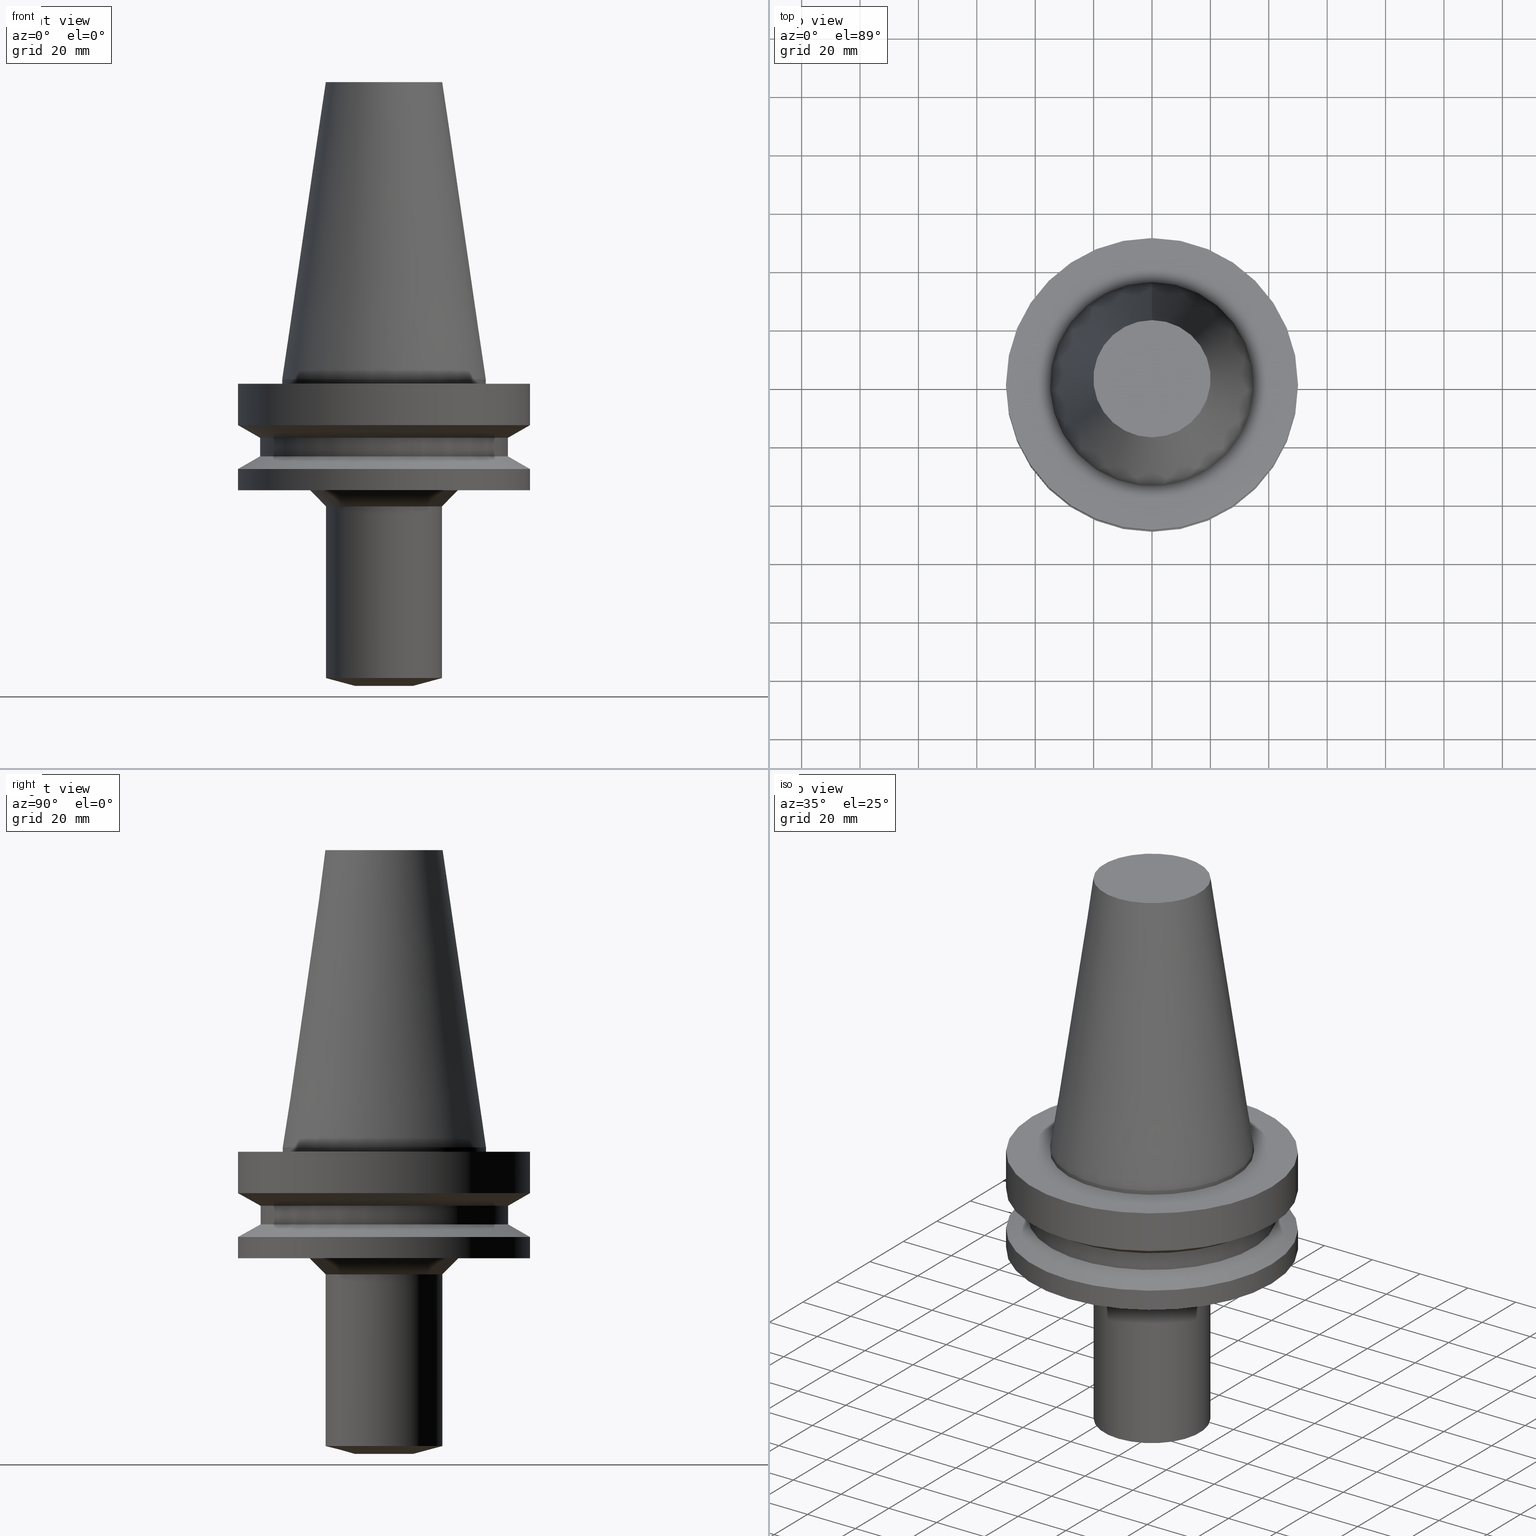
[diagram: canonical four-view strip — front | top / right | iso, engineering-drawing reading convention]
A machine part, canonical four-view strip (front | top / right | iso — engineering-drawing reading convention). The complete STEP part file that produces these views, byte-faithful:
ISO-10303-21;
HEADER;
FILE_DESCRIPTION((''),'1');
FILE_NAME('T:/21_DXF\X2\30C730FC30BF4F5C621057FA6E96\X0\/BBT50M-BSL16-105.stp','2017-05-09T05:43:40',(''),(''),'Spatial Interop R21 SP3','Kubotek KeyCreator 2011 V10.0.2 (22737)',' ');
FILE_SCHEMA(('automotive_design'));
ENDSEC;
DATA;
#1=MECHANICAL_DESIGN_GEOMETRIC_PRESENTATION_REPRESENTATION(' ',(#10,#11,#12,#13,#14,#15,#16,#17,#18,#19,#20,#21,#22,#23,#24,#25,#26,#27,#28,#29,#30,#31,#32,#33,#34,#35,#36,#37),#6);
#2=PRODUCT_DEFINITION_CONTEXT('',#38,'design');
#3=APPLICATION_PROTOCOL_DEFINITION('INTERNATIONAL STANDARD','automotive_design',1994,#38);
#4=PRODUCT_CATEGORY_RELATIONSHIP('NONE','NONE',#39,#40);
#5=SHAPE_DEFINITION_REPRESENTATION(#41,#42);
#6= (GEOMETRIC_REPRESENTATION_CONTEXT(3)GLOBAL_UNCERTAINTY_ASSIGNED_CONTEXT((#45))GLOBAL_UNIT_ASSIGNED_CONTEXT((#47,#48,#49))REPRESENTATION_CONTEXT('NONE','WORKSPACE'));
#10=STYLED_ITEM('',(#51,#52),#53);
#11=STYLED_ITEM('',(#54),#55);
#12=STYLED_ITEM('',(#56,#57),#58);
#13=STYLED_ITEM('',(#59,#60),#61);
#14=STYLED_ITEM('',(#62),#63);
#15=STYLED_ITEM('',(#64),#65);
#16=STYLED_ITEM('',(#66,#67),#68);
#17=STYLED_ITEM('',(#69),#70);
#18=STYLED_ITEM('',(#71),#72);
#19=STYLED_ITEM('',(#73,#74),#75);
#20=STYLED_ITEM('',(#76,#77),#78);
#21=STYLED_ITEM('',(#79,#80),#81);
#22=STYLED_ITEM('',(#82),#83);
#23=STYLED_ITEM('',(#84),#85);
#24=STYLED_ITEM('',(#86,#87),#88);
#25=STYLED_ITEM('',(#89,#90),#91);
#26=STYLED_ITEM('',(#92,#93),#94);
#27=STYLED_ITEM('',(#95,#96),#97);
#28=STYLED_ITEM('',(#98),#99);
#29=STYLED_ITEM('',(#100),#101);
#30=STYLED_ITEM('',(#102,#103),#104);
#31=STYLED_ITEM('',(#105),#106);
#32=STYLED_ITEM('',(#107,#108),#109);
#33=STYLED_ITEM('',(#110),#111);
#34=STYLED_ITEM('',(#112,#113),#114);
#35=STYLED_ITEM('',(#115,#116),#117);
#36=STYLED_ITEM('',(#118),#119);
#37=STYLED_ITEM('',(#120),#121);
#38=APPLICATION_CONTEXT(' ');
#39=PRODUCT_CATEGORY('part','NONE');
#40=PRODUCT_RELATED_PRODUCT_CATEGORY('detail',' ',(#122));
#41=PRODUCT_DEFINITION_SHAPE('NONE','NONE',#123);
#42=ADVANCED_BREP_SHAPE_REPRESENTATION('Unnamed[1]',(#58,#124),#6);
#45=UNCERTAINTY_MEASURE_WITH_UNIT(LENGTH_MEASURE(1.0E-006),#47,'','');
#47= (CONVERSION_BASED_UNIT('MILLIMETRE',#127)LENGTH_UNIT()NAMED_UNIT(#130));
#48= (NAMED_UNIT(#132)PLANE_ANGLE_UNIT()SI_UNIT($,.RADIAN.));
#49= (NAMED_UNIT(#132)SOLID_ANGLE_UNIT()SI_UNIT($,.STERADIAN.));
#51=PRESENTATION_STYLE_ASSIGNMENT((#138));
#52=PRESENTATION_STYLE_ASSIGNMENT((#139));
#53=ADVANCED_FACE('Unnamed[1]',(#140,#141),#142,.T.);
#54=PRESENTATION_STYLE_ASSIGNMENT((#143));
#55=EDGE_CURVE('Unnamed[1]',#144,#144,#145,.T.);
#56=PRESENTATION_STYLE_ASSIGNMENT((#146));
#57=PRESENTATION_STYLE_ASSIGNMENT((#147));
#58=MANIFOLD_SOLID_BREP('Unnamed[1]',#148);
#59=PRESENTATION_STYLE_ASSIGNMENT((#149));
#60=PRESENTATION_STYLE_ASSIGNMENT((#150));
#61=ADVANCED_FACE('Unnamed[1]',(#151,#152),#153,.T.);
#62=PRESENTATION_STYLE_ASSIGNMENT((#154));
#63=EDGE_CURVE('Unnamed[1]',#155,#155,#156,.T.);
#64=PRESENTATION_STYLE_ASSIGNMENT((#157));
#65=EDGE_CURVE('Unnamed[1]',#158,#158,#159,.T.);
#66=PRESENTATION_STYLE_ASSIGNMENT((#160));
#67=PRESENTATION_STYLE_ASSIGNMENT((#161));
#68=ADVANCED_FACE('Unnamed[1]',(#162,#163),#164,.T.);
#69=PRESENTATION_STYLE_ASSIGNMENT((#165));
#70=EDGE_CURVE('Unnamed[1]',#166,#166,#167,.T.);
#71=PRESENTATION_STYLE_ASSIGNMENT((#168));
#72=EDGE_CURVE('Unnamed[1]',#169,#169,#170,.T.);
#73=PRESENTATION_STYLE_ASSIGNMENT((#171));
#74=PRESENTATION_STYLE_ASSIGNMENT((#172));
#75=ADVANCED_FACE('Unnamed[1]',(#173,#174),#175,.T.);
#76=PRESENTATION_STYLE_ASSIGNMENT((#176));
#77=PRESENTATION_STYLE_ASSIGNMENT((#177));
#78=ADVANCED_FACE('Unnamed[1]',(#178,#179),#180,.T.);
#79=PRESENTATION_STYLE_ASSIGNMENT((#181));
#80=PRESENTATION_STYLE_ASSIGNMENT((#182));
#81=ADVANCED_FACE('Unnamed[1]',(#183,#184),#185,.T.);
#82=PRESENTATION_STYLE_ASSIGNMENT((#186));
#83=EDGE_CURVE('Unnamed[1]',#187,#187,#188,.T.);
#84=PRESENTATION_STYLE_ASSIGNMENT((#189));
#85=EDGE_CURVE('Unnamed[1]',#190,#190,#191,.T.);
#86=PRESENTATION_STYLE_ASSIGNMENT((#192));
#87=PRESENTATION_STYLE_ASSIGNMENT((#193));
#88=ADVANCED_FACE('Unnamed[1]',(#194,#195),#196,.T.);
#89=PRESENTATION_STYLE_ASSIGNMENT((#197));
#90=PRESENTATION_STYLE_ASSIGNMENT((#198));
#91=ADVANCED_FACE('Unnamed[1]',(#199),#200,.T.);
#92=PRESENTATION_STYLE_ASSIGNMENT((#201));
#93=PRESENTATION_STYLE_ASSIGNMENT((#202));
#94=ADVANCED_FACE('Unnamed[1]',(#203,#204),#205,.T.);
#95=PRESENTATION_STYLE_ASSIGNMENT((#206));
#96=PRESENTATION_STYLE_ASSIGNMENT((#207));
#97=ADVANCED_FACE('Unnamed[1]',(#208),#209,.T.);
#98=PRESENTATION_STYLE_ASSIGNMENT((#210));
#99=EDGE_CURVE('Unnamed[1]',#211,#211,#212,.T.);
#100=PRESENTATION_STYLE_ASSIGNMENT((#213));
#101=EDGE_CURVE('Unnamed[1]',#214,#214,#215,.T.);
#102=PRESENTATION_STYLE_ASSIGNMENT((#216));
#103=PRESENTATION_STYLE_ASSIGNMENT((#217));
#104=ADVANCED_FACE('Unnamed[1]',(#218,#219),#220,.T.);
#105=PRESENTATION_STYLE_ASSIGNMENT((#221));
#106=EDGE_CURVE('Unnamed[1]',#222,#222,#223,.T.);
#107=PRESENTATION_STYLE_ASSIGNMENT((#224));
#108=PRESENTATION_STYLE_ASSIGNMENT((#225));
#109=ADVANCED_FACE('Unnamed[1]',(#226,#227),#228,.T.);
#110=PRESENTATION_STYLE_ASSIGNMENT((#229));
#111=EDGE_CURVE('Unnamed[1]',#230,#230,#231,.T.);
#112=PRESENTATION_STYLE_ASSIGNMENT((#232));
#113=PRESENTATION_STYLE_ASSIGNMENT((#233));
#114=ADVANCED_FACE('Unnamed[1]',(#234,#235),#236,.T.);
#115=PRESENTATION_STYLE_ASSIGNMENT((#237));
#116=PRESENTATION_STYLE_ASSIGNMENT((#238));
#117=ADVANCED_FACE('Unnamed[1]',(#239,#240),#241,.T.);
#118=PRESENTATION_STYLE_ASSIGNMENT((#242));
#119=EDGE_CURVE('Unnamed[1]',#243,#243,#244,.T.);
#120=PRESENTATION_STYLE_ASSIGNMENT((#245));
#121=EDGE_CURVE('Unnamed[1]',#246,#246,#247,.T.);
#122=PRODUCT('Unnamed[1]','Unnamed[1]','PART-Unnamed[1]-DESC',(#248));
#123=PRODUCT_DEFINITION('NONE','NONE',#249,#2);
#124=AXIS2_PLACEMENT_3D('',#250,#251,#252);
#127=LENGTH_MEASURE_WITH_UNIT(LENGTH_MEASURE(1.0),#253);
#130=DIMENSIONAL_EXPONENTS(1.0,0.0,0.0,0.0,0.0,0.0,0.0);
#132=DIMENSIONAL_EXPONENTS(0.0,0.0,0.0,0.0,0.0,0.0,0.0);
#138=SURFACE_STYLE_USAGE(.BOTH.,#254);
#139=CURVE_STYLE('',#255,POSITIVE_LENGTH_MEASURE(1000.0),#256);
#140=FACE_BOUND('',#257,.T.);
#141=FACE_BOUND('',#258,.T.);
#142=CONICAL_SURFACE('',#259,27.5020833325942,0.144812498253158);
#143=CURVE_STYLE('',#260,POSITIVE_LENGTH_MEASURE(1000.0),#261);
#144=VERTEX_POINT('',#262);
#145=CIRCLE('',#263,50.0);
#146=SURFACE_STYLE_USAGE(.BOTH.,#264);
#147=CURVE_STYLE('',#265,POSITIVE_LENGTH_MEASURE(1000.0),#266);
#148=CLOSED_SHELL('',(#91,#53,#68,#104,#117,#114,#61,#75,#88,#78,#81,#94,#109,#97));
#149=SURFACE_STYLE_USAGE(.BOTH.,#267);
#150=CURVE_STYLE('',#268,POSITIVE_LENGTH_MEASURE(1000.0),#269);
#151=FACE_BOUND('',#270,.T.);
#152=FACE_BOUND('',#271,.T.);
#153=CYLINDRICAL_SURFACE('',#272,42.5);
#154=CURVE_STYLE('',#273,POSITIVE_LENGTH_MEASURE(1000.0),#274);
#155=VERTEX_POINT('',#275);
#156=CIRCLE('',#276,20.0000000000053);
#157=CURVE_STYLE('',#277,POSITIVE_LENGTH_MEASURE(1000.0),#278);
#158=VERTEX_POINT('',#279);
#159=CIRCLE('',#280,50.0);
#160=SURFACE_STYLE_USAGE(.BOTH.,#281);
#161=CURVE_STYLE('',#282,POSITIVE_LENGTH_MEASURE(1000.0),#283);
#162=FACE_BOUND('',#284,.T.);
#163=FACE_BOUND('',#285,.T.);
#164=CYLINDRICAL_SURFACE('',#286,34.925);
#165=CURVE_STYLE('',#287,POSITIVE_LENGTH_MEASURE(1000.0),#288);
#166=VERTEX_POINT('',#289);
#167=CIRCLE('',#290,34.925);
#168=CURVE_STYLE('',#291,POSITIVE_LENGTH_MEASURE(1000.0),#292);
#169=VERTEX_POINT('',#293);
#170=CIRCLE('',#294,34.925);
#171=SURFACE_STYLE_USAGE(.BOTH.,#295);
#172=CURVE_STYLE('',#296,POSITIVE_LENGTH_MEASURE(1000.0),#297);
#173=FACE_BOUND('',#298,.T.);
#174=FACE_BOUND('',#299,.T.);
#175=CONICAL_SURFACE('',#300,46.25,1.04719755108881);
#176=SURFACE_STYLE_USAGE(.BOTH.,#301);
#177=CURVE_STYLE('',#302,POSITIVE_LENGTH_MEASURE(1000.0),#303);
#178=FACE_BOUND('',#304,.T.);
#179=FACE_OUTER_BOUND('',#305,.T.);
#180=PLANE('',#306);
#181=SURFACE_STYLE_USAGE(.BOTH.,#307);
#182=CURVE_STYLE('',#308,POSITIVE_LENGTH_MEASURE(1000.0),#309);
#183=FACE_BOUND('',#310,.T.);
#184=FACE_BOUND('',#311,.T.);
#185=CONICAL_SURFACE('',#312,22.749999999996,0.785398163397359);
#186=CURVE_STYLE('',#313,POSITIVE_LENGTH_MEASURE(1000.0),#314);
#187=VERTEX_POINT('',#315);
#188=CIRCLE('',#316,50.0);
#189=CURVE_STYLE('',#317,POSITIVE_LENGTH_MEASURE(1000.0),#318);
#190=VERTEX_POINT('',#319);
#191=CIRCLE('',#320,42.5);
#192=SURFACE_STYLE_USAGE(.BOTH.,#321);
#193=CURVE_STYLE('',#322,POSITIVE_LENGTH_MEASURE(1000.0),#323);
#194=FACE_BOUND('',#324,.T.);
#195=FACE_BOUND('',#325,.T.);
#196=CYLINDRICAL_SURFACE('',#326,50.0);
#197=SURFACE_STYLE_USAGE(.BOTH.,#327);
#198=CURVE_STYLE('',#328,POSITIVE_LENGTH_MEASURE(1000.0),#329);
#199=FACE_OUTER_BOUND('',#330,.T.);
#200=PLANE('',#331);
#201=SURFACE_STYLE_USAGE(.BOTH.,#332);
#202=CURVE_STYLE('',#333,POSITIVE_LENGTH_MEASURE(1000.0),#334);
#203=FACE_BOUND('',#335,.T.);
#204=FACE_BOUND('',#336,.T.);
#205=CYLINDRICAL_SURFACE('',#337,20.0000000000034);
#206=SURFACE_STYLE_USAGE(.BOTH.,#338);
#207=CURVE_STYLE('',#339,POSITIVE_LENGTH_MEASURE(1000.0),#340);
#208=FACE_OUTER_BOUND('',#341,.T.);
#209=PLANE('',#342);
#210=CURVE_STYLE('',#343,POSITIVE_LENGTH_MEASURE(1000.0),#344);
#211=VERTEX_POINT('',#345);
#212=CIRCLE('',#346,42.5);
#213=CURVE_STYLE('',#347,POSITIVE_LENGTH_MEASURE(1000.0),#348);
#214=VERTEX_POINT('',#349);
#215=CIRCLE('',#350,50.0);
#216=SURFACE_STYLE_USAGE(.BOTH.,#351);
#217=CURVE_STYLE('',#352,POSITIVE_LENGTH_MEASURE(1000.0),#353);
#218=FACE_OUTER_BOUND('',#354,.T.);
#219=FACE_BOUND('',#355,.T.);
#220=PLANE('',#356);
#221=CURVE_STYLE('',#357,POSITIVE_LENGTH_MEASURE(1000.0),#358);
#222=VERTEX_POINT('',#359);
#223=CIRCLE('',#360,20.0000000000014);
#224=SURFACE_STYLE_USAGE(.BOTH.,#361);
#225=CURVE_STYLE('',#362,POSITIVE_LENGTH_MEASURE(1000.0),#363);
#226=FACE_BOUND('',#364,.T.);
#227=FACE_BOUND('',#365,.T.);
#228=CONICAL_SURFACE('',#366,15.0000000000054,1.30899693899576);
#229=CURVE_STYLE('',#367,POSITIVE_LENGTH_MEASURE(1000.0),#368);
#230=VERTEX_POINT('',#369);
#231=CIRCLE('',#370,20.0791666651884);
#232=SURFACE_STYLE_USAGE(.BOTH.,#371);
#233=CURVE_STYLE('',#372,POSITIVE_LENGTH_MEASURE(1000.0),#373);
#234=FACE_BOUND('',#374,.T.);
#235=FACE_BOUND('',#375,.T.);
#236=CONICAL_SURFACE('',#376,46.25,1.04719755108882);
#237=SURFACE_STYLE_USAGE(.BOTH.,#377);
#238=CURVE_STYLE('',#378,POSITIVE_LENGTH_MEASURE(1000.0),#379);
#239=FACE_BOUND('',#380,.T.);
#240=FACE_BOUND('',#381,.T.);
#241=CYLINDRICAL_SURFACE('',#382,50.0);
#242=CURVE_STYLE('',#383,POSITIVE_LENGTH_MEASURE(1000.0),#384);
#243=VERTEX_POINT('',#385);
#244=CIRCLE('',#386,25.4999999999905);
#245=CURVE_STYLE('',#387,POSITIVE_LENGTH_MEASURE(1000.0),#388);
#246=VERTEX_POINT('',#389);
#247=CIRCLE('',#390,10.0000000000054);
#248=PRODUCT_CONTEXT('',#38,'mechanical');
#249=PRODUCT_DEFINITION_FORMATION_WITH_SPECIFIED_SOURCE(' ','NONE',#122,.NOT_KNOWN.);
#250=CARTESIAN_POINT('',(0.0,0.0,0.0));
#251=DIRECTION('',(0.0,0.0,1.0));
#252=DIRECTION('',(1.0,0.0,0.0));
#253= (NAMED_UNIT(#130)LENGTH_UNIT()SI_UNIT(.MILLI.,.METRE.));
#254=SURFACE_SIDE_STYLE('',(#392));
#255=DRAUGHTING_PRE_DEFINED_CURVE_FONT('continuous');
#256=COLOUR_RGB('',0.0,1.0,0.0);
#257=EDGE_LOOP('',(#393));
#258=EDGE_LOOP('',(#394));
#259=AXIS2_PLACEMENT_3D('',#395,#396,#397);
#260=DRAUGHTING_PRE_DEFINED_CURVE_FONT('continuous');
#261=COLOUR_RGB('',0.0,1.0,0.0);
#262=CARTESIAN_POINT('',(9.18485099360509E-017,50.0,-1.49999999999999));
#263=AXIS2_PLACEMENT_3D('',#398,#399,#400);
#264=SURFACE_SIDE_STYLE('',(#401));
#265=DRAUGHTING_PRE_DEFINED_CURVE_FONT('continuous');
#266=COLOUR_RGB('',0.0,1.0,0.0);
#267=SURFACE_SIDE_STYLE('',(#402));
#268=DRAUGHTING_PRE_DEFINED_CURVE_FONT('continuous');
#269=COLOUR_RGB('',0.0,1.0,0.0);
#270=EDGE_LOOP('',(#403));
#271=EDGE_LOOP('',(#404));
#272=AXIS2_PLACEMENT_3D('',#405,#406,#407);
#273=DRAUGHTING_PRE_DEFINED_CURVE_FONT('continuous');
#274=COLOUR_RGB('',0.0,1.0,0.0);
#275=CARTESIAN_POINT('',(6.26532413510127E-015,20.0000000000053,-102.320508075691));
#276=AXIS2_PLACEMENT_3D('',#408,#409,#410);
#277=DRAUGHTING_PRE_DEFINED_CURVE_FONT('continuous');
#278=COLOUR_RGB('',0.0,1.0,0.0);
#279=CARTESIAN_POINT('',(9.61347737330674E-016,50.0,-15.7));
#280=AXIS2_PLACEMENT_3D('',#411,#412,#413);
#281=SURFACE_SIDE_STYLE('',(#414));
#282=DRAUGHTING_PRE_DEFINED_CURVE_FONT('continuous');
#283=COLOUR_RGB('',0.0,1.0,0.0);
#284=EDGE_LOOP('',(#415));
#285=EDGE_LOOP('',(#416));
#286=AXIS2_PLACEMENT_3D('',#417,#418,#419);
#287=DRAUGHTING_PRE_DEFINED_CURVE_FONT('continuous');
#288=COLOUR_RGB('',0.0,1.0,0.0);
#289=CARTESIAN_POINT('',(9.18485099360511E-017,34.925,-1.5));
#290=AXIS2_PLACEMENT_3D('',#420,#421,#422);
#291=DRAUGHTING_PRE_DEFINED_CURVE_FONT('continuous');
#292=COLOUR_RGB('',0.0,1.0,0.0);
#293=CARTESIAN_POINT('',(-4.30483861169435E-031,34.925,4.27707894602213E-015));
#294=AXIS2_PLACEMENT_3D('',#423,#424,#425);
#295=SURFACE_SIDE_STYLE('',(#426));
#296=DRAUGHTING_PRE_DEFINED_CURVE_FONT('continuous');
#297=COLOUR_RGB('',0.0,1.0,0.0);
#298=EDGE_LOOP('',(#427));
#299=EDGE_LOOP('',(#428));
#300=AXIS2_PLACEMENT_3D('',#429,#430,#431);
#301=SURFACE_SIDE_STYLE('',(#432));
#302=DRAUGHTING_PRE_DEFINED_CURVE_FONT('continuous');
#303=COLOUR_RGB('',0.0,1.0,0.0);
#304=EDGE_LOOP('',(#433));
#305=EDGE_LOOP('',(#434));
#306=AXIS2_PLACEMENT_3D('',#435,#436,#437);
#307=SURFACE_SIDE_STYLE('',(#438));
#308=DRAUGHTING_PRE_DEFINED_CURVE_FONT('continuous');
#309=COLOUR_RGB('',0.0,1.0,0.0);
#310=EDGE_LOOP('',(#439));
#311=EDGE_LOOP('',(#440));
#312=AXIS2_PLACEMENT_3D('',#441,#442,#443);
#313=DRAUGHTING_PRE_DEFINED_CURVE_FONT('continuous');
#314=COLOUR_RGB('',0.0,1.0,0.0);
#315=CARTESIAN_POINT('',(2.32682891837997E-015,50.0,-38.0));
#316=AXIS2_PLACEMENT_3D('',#444,#445,#446);
#317=DRAUGHTING_PRE_DEFINED_CURVE_FONT('continuous');
#318=COLOUR_RGB('',0.0,1.0,0.0);
#319=CARTESIAN_POINT('',(1.2264915470779E-015,42.5,-20.03012702));
#320=AXIS2_PLACEMENT_3D('',#447,#448,#449);
#321=SURFACE_SIDE_STYLE('',(#450));
#322=DRAUGHTING_PRE_DEFINED_CURVE_FONT('continuous');
#323=COLOUR_RGB('',0.0,1.0,0.0);
#324=EDGE_LOOP('',(#451));
#325=EDGE_LOOP('',(#452));
#326=AXIS2_PLACEMENT_3D('',#453,#454,#455);
#327=SURFACE_SIDE_STYLE('',(#456));
#328=DRAUGHTING_PRE_DEFINED_CURVE_FONT('continuous');
#329=COLOUR_RGB('',0.0,1.0,0.0);
#330=EDGE_LOOP('',(#457));
#331=AXIS2_PLACEMENT_3D('',#458,#459,#460);
#332=SURFACE_SIDE_STYLE('',(#461));
#333=DRAUGHTING_PRE_DEFINED_CURVE_FONT('continuous');
#334=COLOUR_RGB('',0.0,1.0,0.0);
#335=EDGE_LOOP('',(#462));
#336=EDGE_LOOP('',(#463));
#337=AXIS2_PLACEMENT_3D('',#464,#465,#466);
#338=SURFACE_SIDE_STYLE('',(#467));
#339=DRAUGHTING_PRE_DEFINED_CURVE_FONT('continuous');
#340=COLOUR_RGB('',0.0,1.0,0.0);
#341=EDGE_LOOP('',(#468));
#342=AXIS2_PLACEMENT_3D('',#469,#470,#471);
#343=DRAUGHTING_PRE_DEFINED_CURVE_FONT('continuous');
#344=COLOUR_RGB('',0.0,1.0,0.0);
#345=CARTESIAN_POINT('',(1.61468902694396E-015,42.5,-26.36987298));
#346=AXIS2_PLACEMENT_3D('',#472,#473,#474);
#347=DRAUGHTING_PRE_DEFINED_CURVE_FONT('continuous');
#348=COLOUR_RGB('',0.0,1.0,0.0);
#349=CARTESIAN_POINT('',(1.87983283669119E-015,50.0,-30.7000000000001));
#350=AXIS2_PLACEMENT_3D('',#475,#476,#477);
#351=SURFACE_SIDE_STYLE('',(#478));
#352=DRAUGHTING_PRE_DEFINED_CURVE_FONT('continuous');
#353=COLOUR_RGB('',0.0,1.0,0.0);
#354=EDGE_LOOP('',(#479));
#355=EDGE_LOOP('',(#480));
#356=AXIS2_PLACEMENT_3D('',#481,#482,#483);
#357=DRAUGHTING_PRE_DEFINED_CURVE_FONT('continuous');
#358=COLOUR_RGB('',0.0,1.0,0.0);
#359=CARTESIAN_POINT('',(2.66360678814489E-015,20.0000000000014,-43.4999999999901));
#360=AXIS2_PLACEMENT_3D('',#484,#485,#486);
#361=SURFACE_SIDE_STYLE('',(#487));
#362=DRAUGHTING_PRE_DEFINED_CURVE_FONT('continuous');
#363=COLOUR_RGB('',0.0,1.0,0.0);
#364=EDGE_LOOP('',(#488));
#365=EDGE_LOOP('',(#489));
#366=AXIS2_PLACEMENT_3D('',#490,#491,#492);
#367=DRAUGHTING_PRE_DEFINED_CURVE_FONT('continuous');
#368=COLOUR_RGB('',0.0,1.0,0.0);
#369=CARTESIAN_POINT('',(-6.23345220766002E-015,20.0791666651884,101.8));
#370=AXIS2_PLACEMENT_3D('',#493,#494,#495);
#371=SURFACE_SIDE_STYLE('',(#496));
#372=DRAUGHTING_PRE_DEFINED_CURVE_FONT('continuous');
#373=COLOUR_RGB('',0.0,1.0,0.0);
#374=EDGE_LOOP('',(#497));
#375=EDGE_LOOP('',(#498));
#376=AXIS2_PLACEMENT_3D('',#499,#500,#501);
#377=SURFACE_SIDE_STYLE('',(#502));
#378=DRAUGHTING_PRE_DEFINED_CURVE_FONT('continuous');
#379=COLOUR_RGB('',0.0,1.0,0.0);
#380=EDGE_LOOP('',(#503));
#381=EDGE_LOOP('',(#504));
#382=AXIS2_PLACEMENT_3D('',#505,#506,#507);
#383=DRAUGHTING_PRE_DEFINED_CURVE_FONT('continuous');
#384=COLOUR_RGB('',0.0,1.0,0.0);
#385=CARTESIAN_POINT('',(2.32682891837997E-015,25.4999999999905,-38.0));
#386=AXIS2_PLACEMENT_3D('',#508,#509,#510);
#387=DRAUGHTING_PRE_DEFINED_CURVE_FONT('continuous');
#388=COLOUR_RGB('',0.0,1.0,0.0);
#389=CARTESIAN_POINT('',(6.42939569552371E-015,10.0000000000054,-105.000000000002));
#390=AXIS2_PLACEMENT_3D('',#511,#512,#513);
#392=SURFACE_STYLE_FILL_AREA(#514);
#393=ORIENTED_EDGE('',*,*,#72,.F.);
#394=ORIENTED_EDGE('',*,*,#111,.T.);
#395=CARTESIAN_POINT('',(-3.11672610383001E-015,-6.23345220766002E-015,50.8999999999999));
#396=DIRECTION('',(6.12323399573677E-017,1.22464679914735E-016,-1.0));
#397=DIRECTION('',(-1.23259516440783E-032,1.0,1.22464679914735E-016));
#398=CARTESIAN_POINT('',(9.18485099360515E-017,1.83697019872103E-016,-1.5));
#399=DIRECTION('',(6.12323399573677E-017,1.22464679914735E-016,-1.0));
#400=DIRECTION('',(-1.23259516440783E-032,1.0,1.22464679914735E-016));
#401=SURFACE_STYLE_FILL_AREA(#515);
#402=SURFACE_STYLE_FILL_AREA(#516);
#403=ORIENTED_EDGE('',*,*,#99,.F.);
#404=ORIENTED_EDGE('',*,*,#85,.T.);
#405=CARTESIAN_POINT('',(1.42059028701093E-015,2.84118057402186E-015,-23.2));
#406=DIRECTION('',(6.12323399573677E-017,1.22464679914735E-016,-1.0));
#407=DIRECTION('',(-1.23259516440783E-032,1.0,1.22464679914735E-016));
#408=CARTESIAN_POINT('',(6.26532413510127E-015,1.25306482702025E-014,-102.320508075691));
#409=DIRECTION('',(6.12323399573677E-017,1.22464679914735E-016,-1.0));
#410=DIRECTION('',(-1.23259516440783E-032,1.0,1.22464679914735E-016));
#411=CARTESIAN_POINT('',(9.61347737330675E-016,1.92269547466135E-015,-15.7));
#412=DIRECTION('',(6.12323399573677E-017,1.22464679914735E-016,-1.0));
#413=DIRECTION('',(-1.23259516440783E-032,1.0,1.22464679914735E-016));
#414=SURFACE_STYLE_FILL_AREA(#517);
#415=ORIENTED_EDGE('',*,*,#70,.F.);
#416=ORIENTED_EDGE('',*,*,#72,.T.);
#417=CARTESIAN_POINT('',(4.59242549680257E-017,9.18485099360515E-017,-0.75));
#418=DIRECTION('',(6.12323399573677E-017,1.22464679914735E-016,-1.0));
#419=DIRECTION('',(-1.23259516440783E-032,1.0,1.22464679914735E-016));
#420=CARTESIAN_POINT('',(9.18485099360515E-017,1.83697019872103E-016,-1.5));
#421=DIRECTION('',(6.12323399573677E-017,1.22464679914735E-016,-1.0));
#422=DIRECTION('',(-1.23259516440783E-032,1.0,1.22464679914735E-016));
#423=CARTESIAN_POINT('',(0.0,0.0,0.0));
#424=DIRECTION('',(6.12323399573677E-017,1.22464679914735E-016,-1.0));
#425=DIRECTION('',(-1.23259516440783E-032,1.0,1.22464679914735E-016));
#426=SURFACE_STYLE_FILL_AREA(#518);
#427=ORIENTED_EDGE('',*,*,#101,.F.);
#428=ORIENTED_EDGE('',*,*,#99,.T.);
#429=CARTESIAN_POINT('',(1.74726093181758E-015,3.49452186363515E-015,-28.53493649));
#430=DIRECTION('',(6.12323399573676E-017,1.22464679914735E-016,-1.0));
#431=DIRECTION('',(-1.23259516440783E-032,1.0,1.22464679914735E-016));
#432=SURFACE_STYLE_FILL_AREA(#519);
#433=ORIENTED_EDGE('',*,*,#119,.F.);
#434=ORIENTED_EDGE('',*,*,#83,.T.);
#435=CARTESIAN_POINT('',(2.32682891837997E-015,37.7499999999953,-38.0));
#436=DIRECTION('',(6.12323399573677E-017,1.22464679914735E-016,-1.0));
#437=DIRECTION('',(-1.23259516440783E-032,1.0,1.22464679914735E-016));
#438=SURFACE_STYLE_FILL_AREA(#520);
#439=ORIENTED_EDGE('',*,*,#106,.F.);
#440=ORIENTED_EDGE('',*,*,#119,.T.);
#441=CARTESIAN_POINT('',(2.49521785326243E-015,4.99043570652486E-015,-40.7499999999951));
#442=DIRECTION('',(-6.12323399573677E-017,-1.22464679914735E-016,1.0));
#443=DIRECTION('',(-1.23259516440783E-032,1.0,1.22464679914735E-016));
#444=CARTESIAN_POINT('',(2.32682891837997E-015,4.65365783675994E-015,-38.0));
#445=DIRECTION('',(6.12323399573677E-017,1.22464679914735E-016,-1.0));
#446=DIRECTION('',(-1.23259516440783E-032,1.0,1.22464679914735E-016));
#447=CARTESIAN_POINT('',(1.2264915470779E-015,2.45298309415579E-015,-20.03012702));
#448=DIRECTION('',(6.12323399573677E-017,1.22464679914735E-016,-1.0));
#449=DIRECTION('',(-1.23259516440783E-032,1.0,1.22464679914735E-016));
#450=SURFACE_STYLE_FILL_AREA(#521);
#451=ORIENTED_EDGE('',*,*,#83,.F.);
#452=ORIENTED_EDGE('',*,*,#101,.T.);
#453=CARTESIAN_POINT('',(2.10333087753558E-015,4.20666175507116E-015,-34.35));
#454=DIRECTION('',(6.12323399573677E-017,1.22464679914735E-016,-1.0));
#455=DIRECTION('',(-1.23259516440783E-032,1.0,1.22464679914735E-016));
#456=SURFACE_STYLE_FILL_AREA(#522);
#457=ORIENTED_EDGE('',*,*,#111,.F.);
#458=CARTESIAN_POINT('',(-6.23345220766002E-015,10.0395833325942,101.8));
#459=DIRECTION('',(-6.12323399573677E-017,-1.22464679914735E-016,1.0));
#460=DIRECTION('',(1.23259516440783E-032,-1.0,-1.22464679914735E-016));
#461=SURFACE_STYLE_FILL_AREA(#523);
#462=ORIENTED_EDGE('',*,*,#63,.F.);
#463=ORIENTED_EDGE('',*,*,#106,.T.);
#464=CARTESIAN_POINT('',(4.46446546162308E-015,8.92893092324615E-015,-72.9102540378403));
#465=DIRECTION('',(6.12323399573677E-017,1.22464679914735E-016,-1.0));
#466=DIRECTION('',(-1.23259516440783E-032,1.0,1.22464679914735E-016));
#467=SURFACE_STYLE_FILL_AREA(#524);
#468=ORIENTED_EDGE('',*,*,#121,.T.);
#469=CARTESIAN_POINT('',(6.42939569552371E-015,5.00000000000273,-105.000000000002));
#470=DIRECTION('',(6.12323399573677E-017,1.22464679914735E-016,-1.0));
#471=DIRECTION('',(-1.23259516440783E-032,1.0,1.22464679914735E-016));
#472=CARTESIAN_POINT('',(1.61468902694396E-015,3.22937805388792E-015,-26.36987298));
#473=DIRECTION('',(6.12323399573677E-017,1.22464679914735E-016,-1.0));
#474=DIRECTION('',(-1.23259516440783E-032,1.0,1.22464679914735E-016));
#475=CARTESIAN_POINT('',(1.87983283669119E-015,3.75966567338238E-015,-30.7000000000001));
#476=DIRECTION('',(6.12323399573677E-017,1.22464679914735E-016,-1.0));
#477=DIRECTION('',(-1.23259516440783E-032,1.0,1.22464679914735E-016));
#478=SURFACE_STYLE_FILL_AREA(#525);
#479=ORIENTED_EDGE('',*,*,#55,.F.);
#480=ORIENTED_EDGE('',*,*,#70,.T.);
#481=CARTESIAN_POINT('',(9.1848509936051E-017,42.4625,-1.49999999999999));
#482=DIRECTION('',(-6.12323399573677E-017,-1.22464679914735E-016,1.0));
#483=DIRECTION('',(1.23259516440783E-032,-1.0,-1.22464679914735E-016));
#484=CARTESIAN_POINT('',(2.66360678814489E-015,5.32721357628977E-015,-43.4999999999901));
#485=DIRECTION('',(6.12323399573677E-017,1.22464679914735E-016,-1.0));
#486=DIRECTION('',(-1.23259516440783E-032,1.0,1.22464679914735E-016));
#487=SURFACE_STYLE_FILL_AREA(#526);
#488=ORIENTED_EDGE('',*,*,#121,.F.);
#489=ORIENTED_EDGE('',*,*,#63,.T.);
#490=CARTESIAN_POINT('',(6.34735991531249E-015,1.2694719830625E-014,-103.660254037846));
#491=DIRECTION('',(-6.12323399573677E-017,-1.22464679914735E-016,1.0));
#492=DIRECTION('',(-1.23259516440783E-032,1.0,1.22464679914735E-016));
#493=CARTESIAN_POINT('',(-6.23345220766002E-015,-1.246690441532E-014,101.8));
#494=DIRECTION('',(6.12323399573677E-017,1.22464679914735E-016,-1.0));
#495=DIRECTION('',(-1.23259516440783E-032,1.0,1.22464679914735E-016));
#496=SURFACE_STYLE_FILL_AREA(#527);
#497=ORIENTED_EDGE('',*,*,#85,.F.);
#498=ORIENTED_EDGE('',*,*,#65,.T.);
#499=CARTESIAN_POINT('',(1.09391964220429E-015,2.18783928440857E-015,-17.86506351));
#500=DIRECTION('',(-6.12323399573676E-017,-1.22464679914735E-016,1.0));
#501=DIRECTION('',(-1.23259516440783E-032,1.0,1.22464679914735E-016));
#502=SURFACE_STYLE_FILL_AREA(#528);
#503=ORIENTED_EDGE('',*,*,#65,.F.);
#504=ORIENTED_EDGE('',*,*,#55,.T.);
#505=CARTESIAN_POINT('',(5.26598123633363E-016,1.05319624726673E-015,-8.60000000000002));
#506=DIRECTION('',(6.12323399573677E-017,1.22464679914735E-016,-1.0));
#507=DIRECTION('',(-1.23259516440783E-032,1.0,1.22464679914735E-016));
#508=CARTESIAN_POINT('',(2.32682891837997E-015,4.65365783675994E-015,-38.0));
#509=DIRECTION('',(6.12323399573677E-017,1.22464679914735E-016,-1.0));
#510=DIRECTION('',(-1.23259516440783E-032,1.0,1.22464679914735E-016));
#511=CARTESIAN_POINT('',(6.42939569552371E-015,1.28587913910474E-014,-105.000000000002));
#512=DIRECTION('',(6.12323399573677E-017,1.22464679914735E-016,-1.0));
#513=DIRECTION('',(-1.23259516440783E-032,1.0,1.22464679914735E-016));
#514=FILL_AREA_STYLE('',(#529));
#515=FILL_AREA_STYLE('',(#530));
#516=FILL_AREA_STYLE('',(#531));
#517=FILL_AREA_STYLE('',(#532));
#518=FILL_AREA_STYLE('',(#533));
#519=FILL_AREA_STYLE('',(#534));
#520=FILL_AREA_STYLE('',(#535));
#521=FILL_AREA_STYLE('',(#536));
#522=FILL_AREA_STYLE('',(#537));
#523=FILL_AREA_STYLE('',(#538));
#524=FILL_AREA_STYLE('',(#539));
#525=FILL_AREA_STYLE('',(#540));
#526=FILL_AREA_STYLE('',(#541));
#527=FILL_AREA_STYLE('',(#542));
#528=FILL_AREA_STYLE('',(#543));
#529=FILL_AREA_STYLE_COLOUR('',#544);
#530=FILL_AREA_STYLE_COLOUR('',#545);
#531=FILL_AREA_STYLE_COLOUR('',#546);
#532=FILL_AREA_STYLE_COLOUR('',#547);
#533=FILL_AREA_STYLE_COLOUR('',#548);
#534=FILL_AREA_STYLE_COLOUR('',#549);
#535=FILL_AREA_STYLE_COLOUR('',#550);
#536=FILL_AREA_STYLE_COLOUR('',#551);
#537=FILL_AREA_STYLE_COLOUR('',#552);
#538=FILL_AREA_STYLE_COLOUR('',#553);
#539=FILL_AREA_STYLE_COLOUR('',#554);
#540=FILL_AREA_STYLE_COLOUR('',#555);
#541=FILL_AREA_STYLE_COLOUR('',#556);
#542=FILL_AREA_STYLE_COLOUR('',#557);
#543=FILL_AREA_STYLE_COLOUR('',#558);
#544=COLOUR_RGB('',0.0,1.0,0.0);
#545=COLOUR_RGB('',0.0,1.0,0.0);
#546=COLOUR_RGB('',0.0,1.0,0.0);
#547=COLOUR_RGB('',0.0,1.0,0.0);
#548=COLOUR_RGB('',0.0,1.0,0.0);
#549=COLOUR_RGB('',0.0,1.0,0.0);
#550=COLOUR_RGB('',0.0,1.0,0.0);
#551=COLOUR_RGB('',0.0,1.0,0.0);
#552=COLOUR_RGB('',0.0,1.0,0.0);
#553=COLOUR_RGB('',0.0,1.0,0.0);
#554=COLOUR_RGB('',0.0,1.0,0.0);
#555=COLOUR_RGB('',0.0,1.0,0.0);
#556=COLOUR_RGB('',0.0,1.0,0.0);
#557=COLOUR_RGB('',0.0,1.0,0.0);
#558=COLOUR_RGB('',0.0,1.0,0.0);
ENDSEC;
END-ISO-10303-21;
